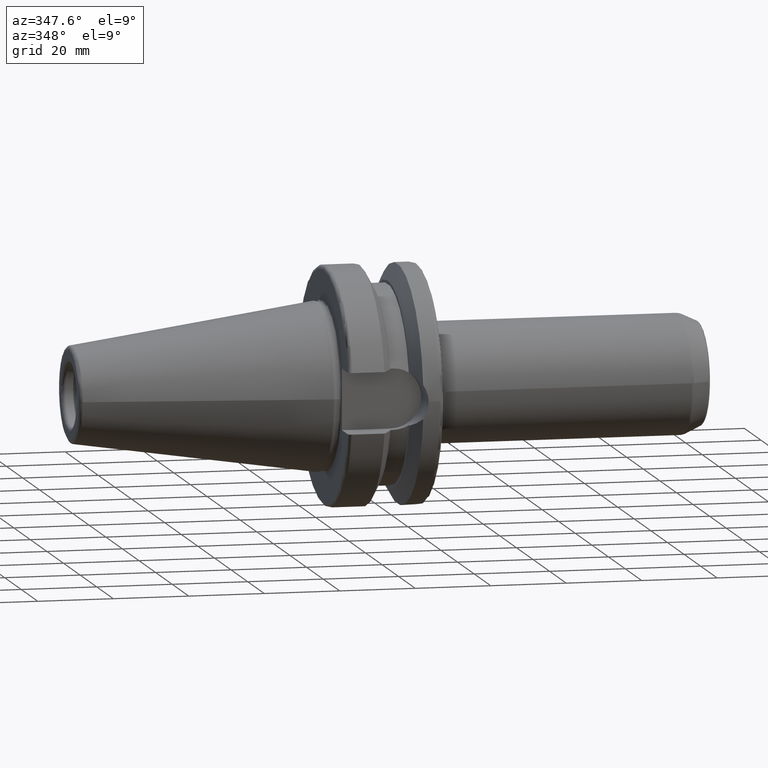
[diagram: clean part render]
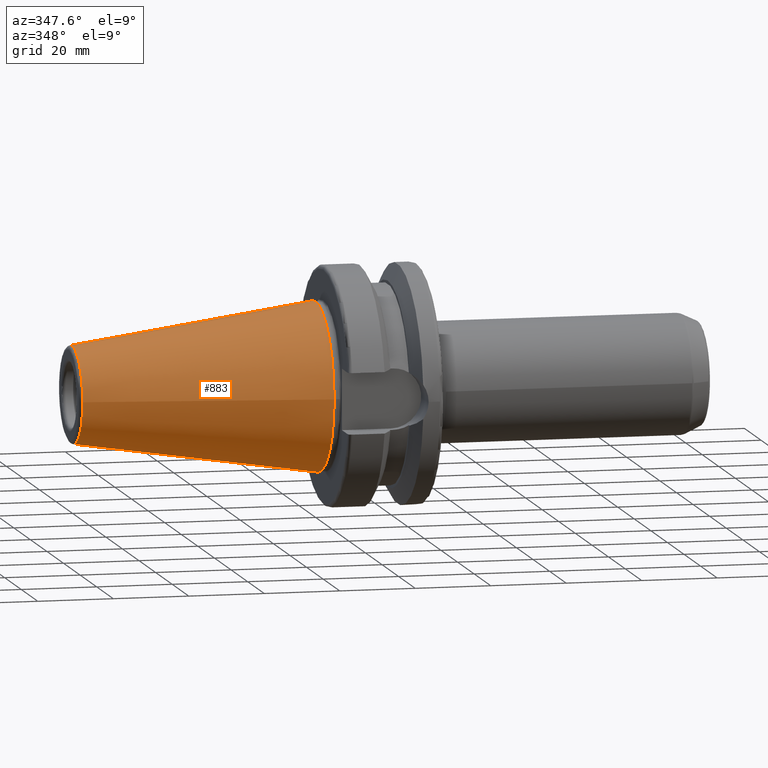
[diagram: same view with one face highlighted and labeled with its STEP entity id]
A machine part, auxiliary view. The second image highlights one B-rep face of the part: STEP entity #883.
In plain terms, the highlighted conical surface has half-angle 8.297 deg.
Its self-contained STEP definition (entity closure, byte-faithful):
#24=CONICAL_SURFACE('',#1001,17.5186442890469,0.144812498238939);
#87=LINE('',#1717,#132);
#132=VECTOR('',#1238,17.5186442890469);
#214=FACE_OUTER_BOUND('',#272,.T.);
#272=EDGE_LOOP('',(#758,#759,#760,#761,#762));
#332=CIRCLE('',#997,12.8122885780937);
#333=CIRCLE('',#998,12.8122885780937);
#336=CIRCLE('',#1002,22.225);
#429=VERTEX_POINT('',#1707);
#430=VERTEX_POINT('',#1708);
#432=VERTEX_POINT('',#1715);
#545=EDGE_CURVE('',#429,#430,#332,.T.);
#546=EDGE_CURVE('',#430,#429,#333,.T.);
#549=EDGE_CURVE('',#432,#432,#336,.T.);
#550=EDGE_CURVE('',#432,#429,#87,.T.);
#758=ORIENTED_EDGE('',*,*,#549,.F.);
#759=ORIENTED_EDGE('',*,*,#550,.T.);
#760=ORIENTED_EDGE('',*,*,#545,.T.);
#761=ORIENTED_EDGE('',*,*,#546,.T.);
#762=ORIENTED_EDGE('',*,*,#550,.F.);
#883=ADVANCED_FACE('',(#214),#24,.T.);
#997=AXIS2_PLACEMENT_3D('',#1709,#1226,#1227);
#998=AXIS2_PLACEMENT_3D('',#1710,#1228,#1229);
#1001=AXIS2_PLACEMENT_3D('',#1714,#1234,#1235);
#1002=AXIS2_PLACEMENT_3D('',#1716,#1236,#1237);
#1226=DIRECTION('center_axis',(1.,0.,0.));
#1227=DIRECTION('ref_axis',(0.,0.,-1.));
#1228=DIRECTION('center_axis',(1.,0.,0.));
#1229=DIRECTION('ref_axis',(0.,0.,-1.));
#1234=DIRECTION('center_axis',(1.,0.,0.));
#1235=DIRECTION('ref_axis',(0.,1.,0.));
#1236=DIRECTION('center_axis',(1.,0.,0.));
#1237=DIRECTION('ref_axis',(0.,0.,-1.));
#1238=DIRECTION('',(-0.989532981063282,0.144306893071729,1.76724974695192E-17));
#1707=CARTESIAN_POINT('',(-64.5443068930717,-12.8122885780937,-1.56905281969147E-15));
#1708=CARTESIAN_POINT('',(-64.5443068930717,-1.56905281969147E-15,12.8122885780937));
#1709=CARTESIAN_POINT('Origin',(-64.5443068930717,0.,0.));
#1710=CARTESIAN_POINT('Origin',(-64.5443068930717,0.,0.));
#1714=CARTESIAN_POINT('Origin',(-32.2721534465359,0.,0.));
#1715=CARTESIAN_POINT('',(4.44089209850063E-15,-22.225,-2.72177751110499E-15));
#1716=CARTESIAN_POINT('Origin',(0.,0.,0.));
#1717=CARTESIAN_POINT('',(-32.2721534465359,-17.5186442890469,-2.14541516539823E-15));